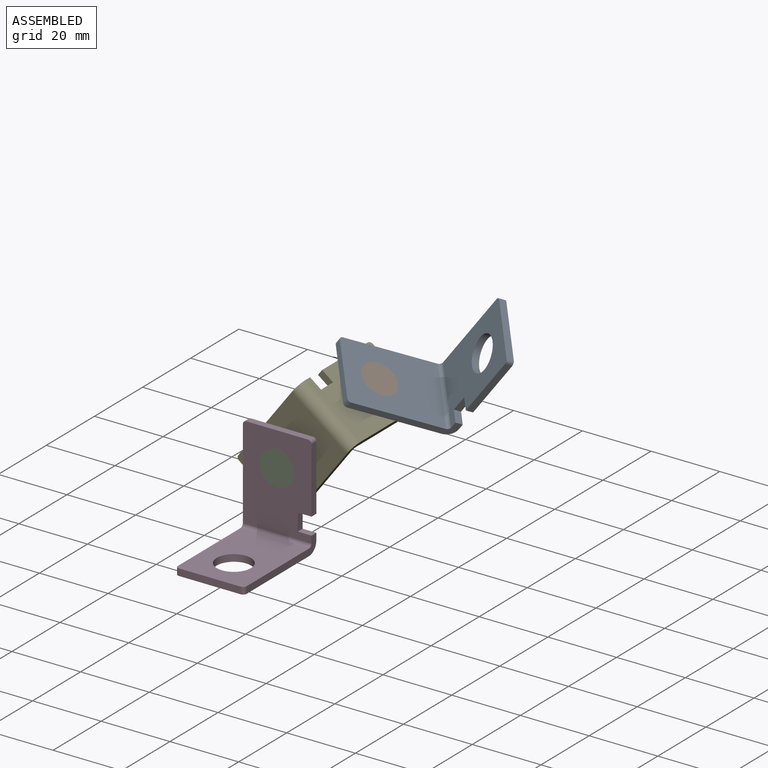
[diagram: assembled view]
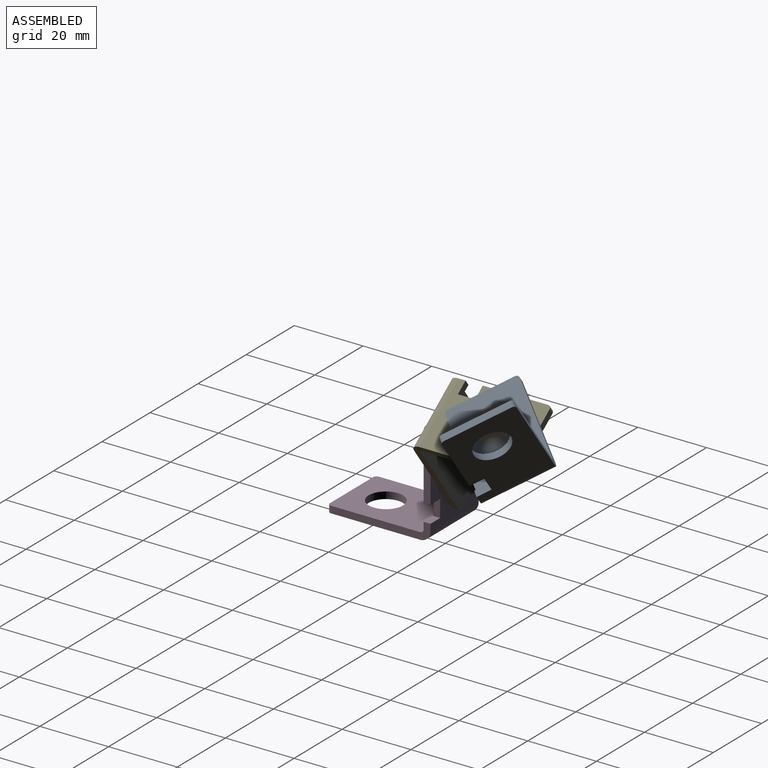
[diagram: assembled view, second angle]
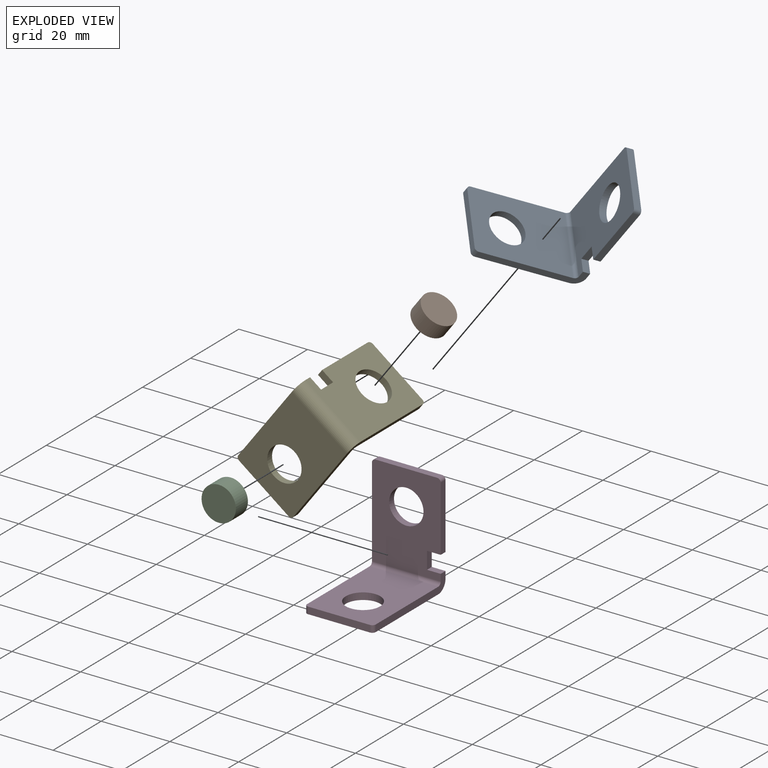
[diagram: exploded view]
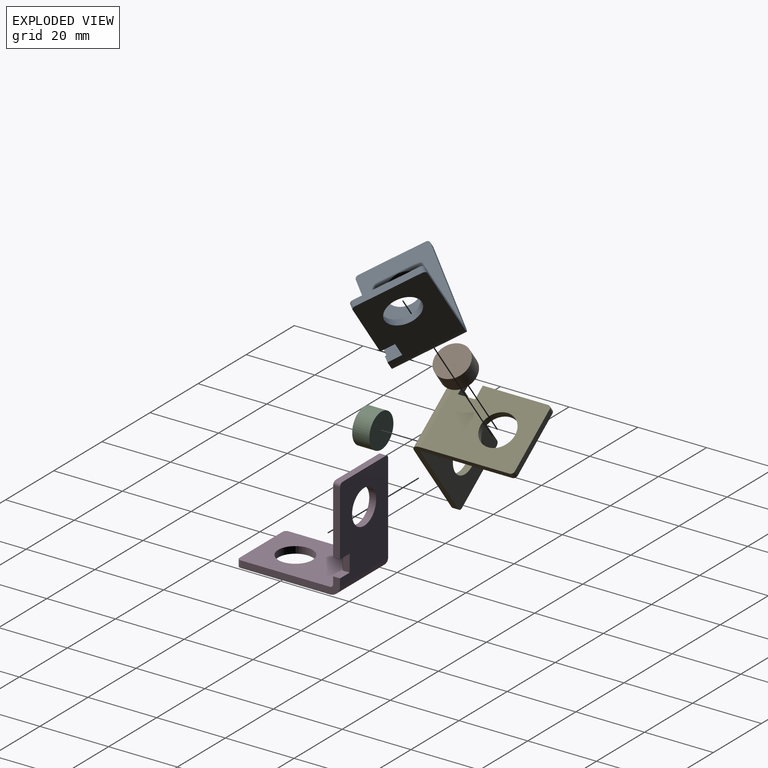
[diagram: exploded view, second angle]
ASSEMBLY  parts=5 mates=4
PART A: 20 faces, bbox 20x30x30 mm
  f0: plane 29x5mm, normal (1,0,0), area 62.3mm2, adj f1,f2,f3,f7,f9,f14,f18,f19
  f1: plane 27x20mm, normal (0,1,0), area 441mm2, adj f0,f4,f6,f8,f9,f10,f11,f12
  f2: plane 27x20mm, normal (0,-1,0), area 441mm2, adj f0,f4,f6,f8,f9,f10,f11,f12
  f3: plane 27x20mm, normal (0,0,1), area 461mm2, adj f0,f4,f5,f13,f14,f17,f18
  f4: plane 29x29mm, normal (-1,0,0), area 110.3mm2, adj f1,f2,f3,f7,f14,f15,f17,f19
  f5: plane 18x2mm, normal (0,-1,0), area 36mm2, adj f3,f7,f17,f18
  f6: plane 19x2mm, normal (1,0,0), area 38mm2, adj f1,f2,f10,f16
  f7: plane 27x20mm, normal (0,0,-1), area 461mm2, adj f0,f4,f5,f13,f17,f18,f19
  f8: plane 18x2mm, normal (0,0,1), area 36mm2, adj f1,f2,f15,f16
  f9: plane 4x2mm, normal (0,0,1), area 8mm2, adj f0,f1,f2,f11
  f10: plane 4x2mm, normal (0,0,-1), area 8mm2, adj f1,f2,f6,f11
  f11: plane 5x2mm, normal (1,0,0), area 10mm2, adj f1,f2,f9,f10
  f12: cylinder r=5mm len=10mm, axis (0,-1,0), area 62.8mm2, adj f1,f2
  f13: cylinder r=5mm len=10mm, axis (0,0,1), area 62.8mm2, adj f3,f7
  f14: cylinder r=1mm len=20mm, axis (-1,0,0), area 31.4mm2, adj f0,f2,f3,f4
  f15: cylinder r=1mm len=2mm, axis (0,1,0), area 3.1mm2, adj f1,f2,f4,f8
  f16: cylinder r=1mm len=2mm, axis (0,-1,0), area 3.1mm2, adj f1,f2,f6,f8
  f17: cylinder r=1mm len=2mm, axis (0,0,-1), area 3.1mm2, adj f3,f4,f5,f7
  f18: cylinder r=1mm len=2mm, axis (0,0,1), area 3.1mm2, adj f0,f3,f5,f7
  f19: cylinder r=3mm len=20mm, axis (-1,0,0), area 94.2mm2, adj f0,f1,f4,f7
PART B: 3 faces, bbox 10x5x10 mm
  f0: cylinder r=5mm len=10mm, axis (0,1,0), area 157.1mm2, adj f1,f2
  f1: plane 10x10mm, normal (0,-1,0), area 78.5mm2, adj f0
  f2: plane 10x10mm, normal (0,1,0), area 78.5mm2, adj f0
PART C: same geometry as B
PART D: same geometry as A
PART E: same geometry as A
PLACE A rot(axis=(-0.24,0.63,-0.74),55.6deg) t=(25.16,54.3,34.64)mm
PLACE B rot(axis=(0.71,-0.13,-0.69),90.9deg) t=(22.17,50.61,36.26)mm
PLACE C rot(axis=(0,1,0),172.9deg) t=(9.88,30.11,19.85)mm
PLACE D t=(9.88,14.61,-0.15)mm fixed
PLACE E rot(axis=(-0.23,-0.69,-0.69),154.2deg) t=(12.88,30.61,23.85)mm fixed
MATE revolute C.f0 <-> D.f12  axis (0,-1,0) through (9.88,27.61,19.85)mm
MATE revolute B.f0 <-> E.f12  axis (-0.6,0,-0.8) through (20.67,50.61,34.26)mm
MATE revolute B.f0 <-> A.f13  axis (0.6,0,0.8) through (23.66,50.61,38.26)mm
MATE revolute E.f13 <-> C.f0  axis (0,1,0) through (9.88,32.61,19.85)mm
